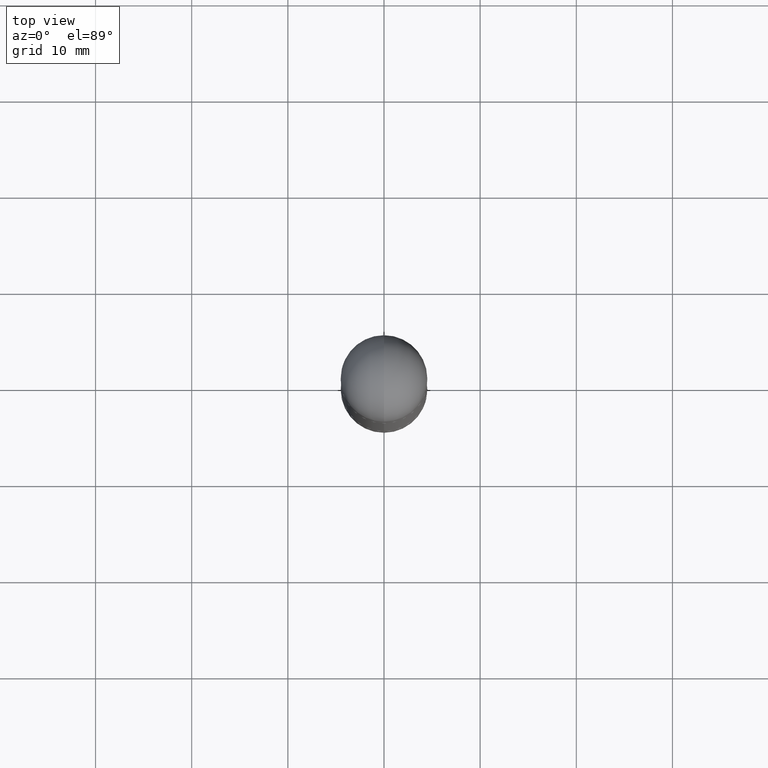
[diagram: clean part render]
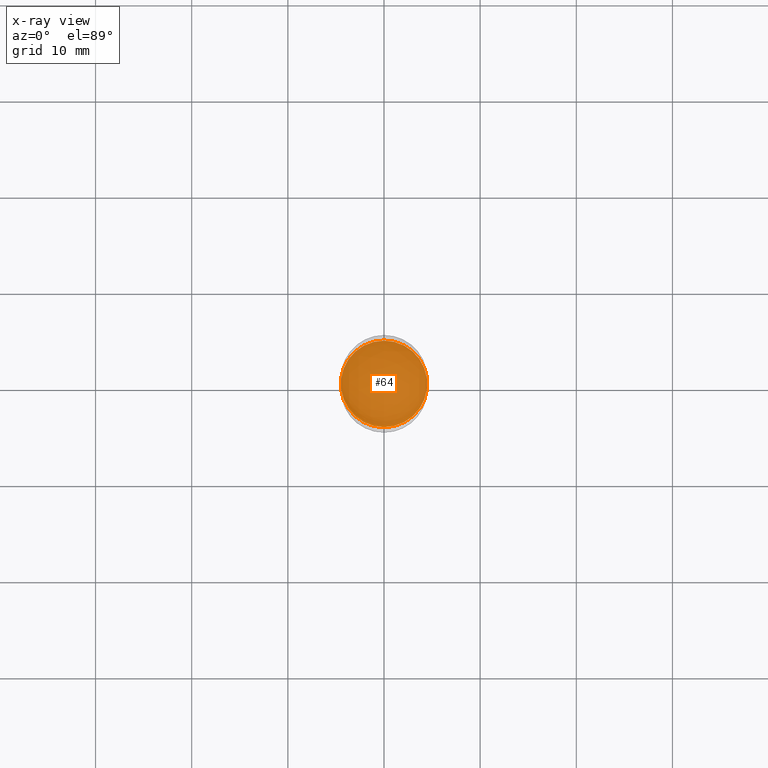
[diagram: x-ray — body ghosted, one internal face saturated and labeled with its STEP entity id]
A machine part, top view, then the same camera in x-ray: the body is ghosted and one INTERNAL B-rep face — a face not visible from any outside direction — is saturated and labeled: STEP entity #64.
In plain terms, the highlighted planar face has unit normal (0, 0, 1).
Its self-contained STEP definition (entity closure, byte-faithful):
#1 = EDGE_CURVE ( 'NONE', #235, #277, #738, .T. ) ;
#64 = ADVANCED_FACE ( 'NONE', ( #450 ), #701, .F. ) ;
#71 = ORIENTED_EDGE ( 'NONE', *, *, #1, .T. ) ;
#87 = DIRECTION ( 'NONE',  ( -0.000000000000000000, -0.000000000000000000, -1.000000000000000000 ) ) ;
#133 = DIRECTION ( 'NONE',  ( 0.000000000000000000, 0.000000000000000000, 1.000000000000000000 ) ) ;
#139 = ORIENTED_EDGE ( 'NONE', *, *, #148, .T. ) ;
#148 = EDGE_CURVE ( 'NONE', #277, #235, #279, .T. ) ;
#235 = VERTEX_POINT ( 'NONE', #266 ) ;
#266 = CARTESIAN_POINT ( 'NONE',  ( -1.237031838352075654E-15, -0.1771500000000053310, -1.476399999999999935 ) ) ;
#277 = VERTEX_POINT ( 'NONE', #735 ) ;
#279 = CIRCLE ( 'NONE', #793, 0.1771500000000001962 ) ;
#317 = DIRECTION ( 'NONE',  ( -0.000000000000000000, -0.000000000000000000, -1.000000000000000000 ) ) ;
#333 = DIRECTION ( 'NONE',  ( -1.000000000000000000, 0.000000000000000000, 0.000000000000000000 ) ) ;
#369 = EDGE_LOOP ( 'NONE', ( #71, #139 ) ) ;
#450 = FACE_OUTER_BOUND ( 'NONE', #369, .T. ) ;
#598 = CARTESIAN_POINT ( 'NONE',  ( 3.609717243253123890E-29, -5.155929888607292268E-15, -1.476399999999999935 ) ) ;
#701 = PLANE ( 'NONE',  #725 ) ;
#724 = AXIS2_PLACEMENT_3D ( 'NONE', #769, #317, #763 ) ;
#725 = AXIS2_PLACEMENT_3D ( 'NONE', #801, #133, #743 ) ;
#735 = CARTESIAN_POINT ( 'NONE',  ( 1.215337220305286460E-15, 0.1771499999999950337, -1.476399999999999935 ) ) ;
#738 = CIRCLE ( 'NONE', #724, 0.1771500000000001962 ) ;
#743 = DIRECTION ( 'NONE',  ( -1.000000000000000000, 0.000000000000000000, 0.000000000000000000 ) ) ;
#763 = DIRECTION ( 'NONE',  ( -1.000000000000000000, 0.000000000000000000, 0.000000000000000000 ) ) ;
#769 = CARTESIAN_POINT ( 'NONE',  ( 3.609717243253123890E-29, -5.155929888607292268E-15, -1.476399999999999935 ) ) ;
#793 = AXIS2_PLACEMENT_3D ( 'NONE', #598, #87, #333 ) ;
#801 = CARTESIAN_POINT ( 'NONE',  ( 0.000000000000000000, 0.000000000000000000, -1.476399999999999935 ) ) ;